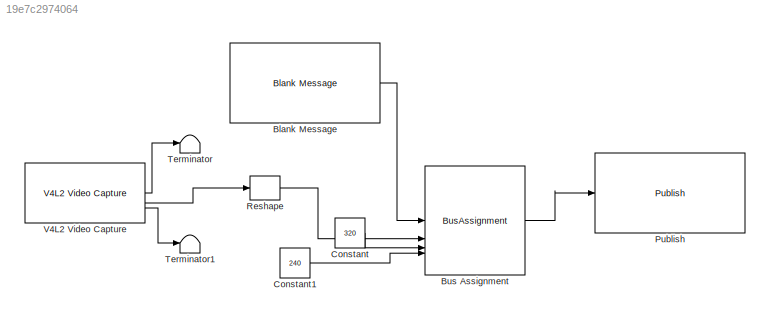
MODEL slx_19e7c2974064
KIND model
CONFIG AbsTol = auto
CONFIG EnableMultiTasking = off
CONFIG FixedStep = auto
CONFIG MaxStep = auto
CONFIG MinStep = auto
CONFIG RelTol = 1e-3
CONFIG SampleTimeConstraint = Unconstrained
CONFIG SolverName = FixedStepAuto
CONFIG StartTime = 0.0
CONFIG StopTime = 10.0
BLOCK [Reference] Blank Message  REF=robotlib/Blank Message
  SourceBlock = robotlib/Blank Message
  SourceType = ROS Blank Message
BLOCK [BusAssignment] Bus Assignment
  AssignedSignals = Data,Height,Width
BLOCK [Constant] Constant
  Value = 320
BLOCK [Constant] Constant1
  Value = 240
BLOCK [Reference] Publish  REF=robotlib/Publish
  SourceBlock = robotlib/Publish
  SourceType = ROS Publish
BLOCK [Reshape] Reshape
BLOCK [Terminator] Terminator
BLOCK [Terminator] Terminator1
BLOCK [Reference] V4L2 Video Capture  REF=raspberrypiAVlib/V4L2 Video Capture
  SourceBlock = raspberrypiAVlib/V4L2 Video Capture
  SourceType = codertarget.raspi.internal.Raspiv4l2Capture
LINE Blank Message:1 -> Bus Assignment:1
LINE Bus Assignment:1 -> Publish:1
LINE Constant1:1 -> Bus Assignment:4
LINE Constant:1 -> Bus Assignment:3
LINE Reshape:1 -> Bus Assignment:2
LINE V4L2 Video Capture:1 -> Terminator:1
LINE V4L2 Video Capture:2 -> Reshape:1
LINE V4L2 Video Capture:3 -> Terminator1:1
